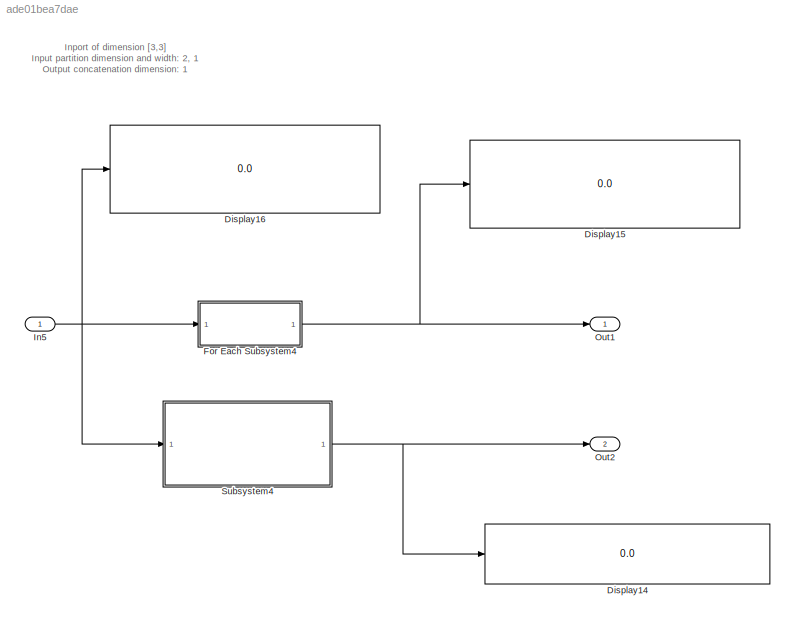
MODEL slx_ade01bea7dae
KIND model
CONFIG AbsTol = auto
CONFIG EnableMultiTasking = on
CONFIG FixedStep = 0.200000
CONFIG MaxStep = auto
CONFIG MinStep = auto
CONFIG RelTol = 1e-3
CONFIG SampleTimeConstraint = Unconstrained
CONFIG Solver = ode3
CONFIG SolverName = ode3
CONFIG StartTime = 0.0
CONFIG StopTime = 10.0
BLOCK [Display] Display14
  Decimation = 1
  Ports = [1]
BLOCK [Display] Display15
  Decimation = 1
  Ports = [1]
BLOCK [Display] Display16
  Decimation = 1
  Ports = [1]
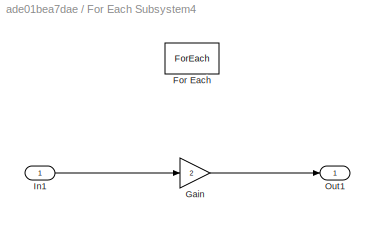
BLOCK [SubSystem] For Each Subsystem4
  Ports = [1, 1]
  RequestExecContextInheritance = off
  Variant = off
BLOCK [ForEach] For Each Subsystem4/For Each
  DisableCoverage = on
  IndexMode = One-based
  Ports = []
BLOCK [Gain] For Each Subsystem4/Gain
  Gain = 2
  OutDataTypeStr = Inherit: Inherit via internal rule
  ParamDataTypeStr = Inherit: Inherit via internal rule
  SaturateOnIntegerOverflow = off
BLOCK [Inport] For Each Subsystem4/In1
  IconDisplay = Port number
  Partition = on
  PartitionDimension = 2
  PartitionOffset = 0
  PartitionWidth = 1
BLOCK [Outport] For Each Subsystem4/Out1
  ConcatenationDimension = 1
  IconDisplay = Port number
BLOCK [Inport] In5
  IconDisplay = Port number
  PortDimensions = [3 3]
BLOCK [Outport] Out1
  IconDisplay = Port number
BLOCK [Outport] Out2
  IconDisplay = Port number
  Port = 2
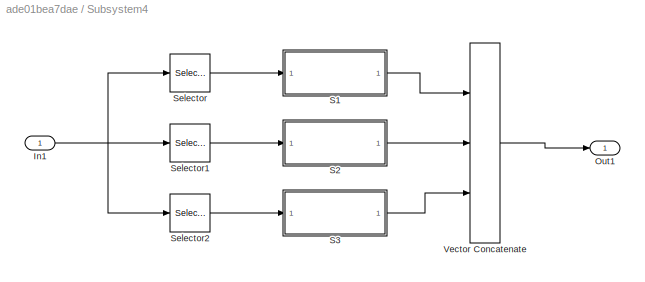
BLOCK [SubSystem] Subsystem4
  Ports = [1, 1]
  RequestExecContextInheritance = off
  Variant = off
BLOCK [Inport] Subsystem4/In1
  IconDisplay = Port number
BLOCK [Outport] Subsystem4/Out1
  IconDisplay = Port number
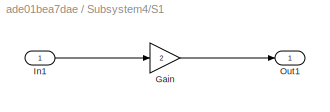
BLOCK [SubSystem] Subsystem4/S1
  Ports = [1, 1]
  RequestExecContextInheritance = off
  Variant = off
BLOCK [Gain] Subsystem4/S1/Gain
  Gain = 2
  OutDataTypeStr = Inherit: Inherit via internal rule
  ParamDataTypeStr = Inherit: Inherit via internal rule
  SaturateOnIntegerOverflow = off
BLOCK [Inport] Subsystem4/S1/In1
  IconDisplay = Port number
BLOCK [Outport] Subsystem4/S1/Out1
  IconDisplay = Port number
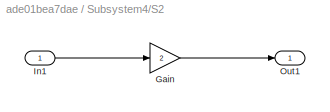
BLOCK [SubSystem] Subsystem4/S2
  Ports = [1, 1]
  RequestExecContextInheritance = off
  Variant = off
BLOCK [Gain] Subsystem4/S2/Gain
  Gain = 2
  OutDataTypeStr = Inherit: Inherit via internal rule
  ParamDataTypeStr = Inherit: Inherit via internal rule
  SaturateOnIntegerOverflow = off
BLOCK [Inport] Subsystem4/S2/In1
  IconDisplay = Port number
BLOCK [Outport] Subsystem4/S2/Out1
  IconDisplay = Port number
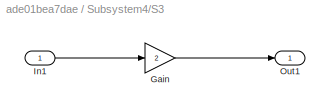
BLOCK [SubSystem] Subsystem4/S3
  Ports = [1, 1]
  RequestExecContextInheritance = off
  Variant = off
BLOCK [Gain] Subsystem4/S3/Gain
  Gain = 2
  OutDataTypeStr = Inherit: Inherit via internal rule
  ParamDataTypeStr = Inherit: Inherit via internal rule
  SaturateOnIntegerOverflow = off
BLOCK [Inport] Subsystem4/S3/In1
  IconDisplay = Port number
BLOCK [Outport] Subsystem4/S3/Out1
  IconDisplay = Port number
BLOCK [Selector] Subsystem4/Selector
  IndexOptions = Select all,Index vector (dialog)
  Indices = 1,1
  InputPortWidth = 3
  NumberOfDimensions = 2
  OutputSizes = 1,1
  Ports = [1, 1]
BLOCK [Selector] Subsystem4/Selector1
  IndexOptions = Select all,Index vector (dialog)
  Indices = 2,2
  InputPortWidth = 3
  NumberOfDimensions = 2
  OutputSizes = 1,1
  Ports = [1, 1]
BLOCK [Selector] Subsystem4/Selector2
  IndexOptions = Select all,Index vector (dialog)
  Indices = 3,3
  InputPortWidth = 3
  NumberOfDimensions = 2
  OutputSizes = 1,1
  Ports = [1, 1]
BLOCK [Concatenate] Subsystem4/Vector Concatenate
  Mode = Multidimensional array
  NumInputs = 3
  Ports = [3, 1]
ANNOTATION (root): Inport of dimension [3,3] Input partition dimension and width: 2, 1 Output concatenation dimension: 1
LINE For Each Subsystem4/Gain:1 -> For Each Subsystem4/Out1:1
LINE For Each Subsystem4/In1:1 -> For Each Subsystem4/Gain:1
NET For Each Subsystem4:1 -> Display15:1, Out1:1
NET In5:1 -> Display16:1, For Each Subsystem4:1, Subsystem4:1
NET Subsystem4/In1:1 -> Subsystem4/Selector1:1, Subsystem4/Selector2:1, Subsystem4/Selector:1
LINE Subsystem4/S1/Gain:1 -> Subsystem4/S1/Out1:1
LINE Subsystem4/S1/In1:1 -> Subsystem4/S1/Gain:1
LINE Subsystem4/S1:1 -> Subsystem4/Vector Concatenate:1
LINE Subsystem4/S2/Gain:1 -> Subsystem4/S2/Out1:1
LINE Subsystem4/S2/In1:1 -> Subsystem4/S2/Gain:1
LINE Subsystem4/S2:1 -> Subsystem4/Vector Concatenate:2
LINE Subsystem4/S3/Gain:1 -> Subsystem4/S3/Out1:1
LINE Subsystem4/S3/In1:1 -> Subsystem4/S3/Gain:1
LINE Subsystem4/S3:1 -> Subsystem4/Vector Concatenate:3
LINE Subsystem4/Selector1:1 -> Subsystem4/S2:1
LINE Subsystem4/Selector2:1 -> Subsystem4/S3:1
LINE Subsystem4/Selector:1 -> Subsystem4/S1:1
LINE Subsystem4/Vector Concatenate:1 -> Subsystem4/Out1:1
NET Subsystem4:1 -> Display14:1, Out2:1
note: NET lines group one-source signal fan-out (src -> all destinations, sorted); 1:1 wires keep LINE
